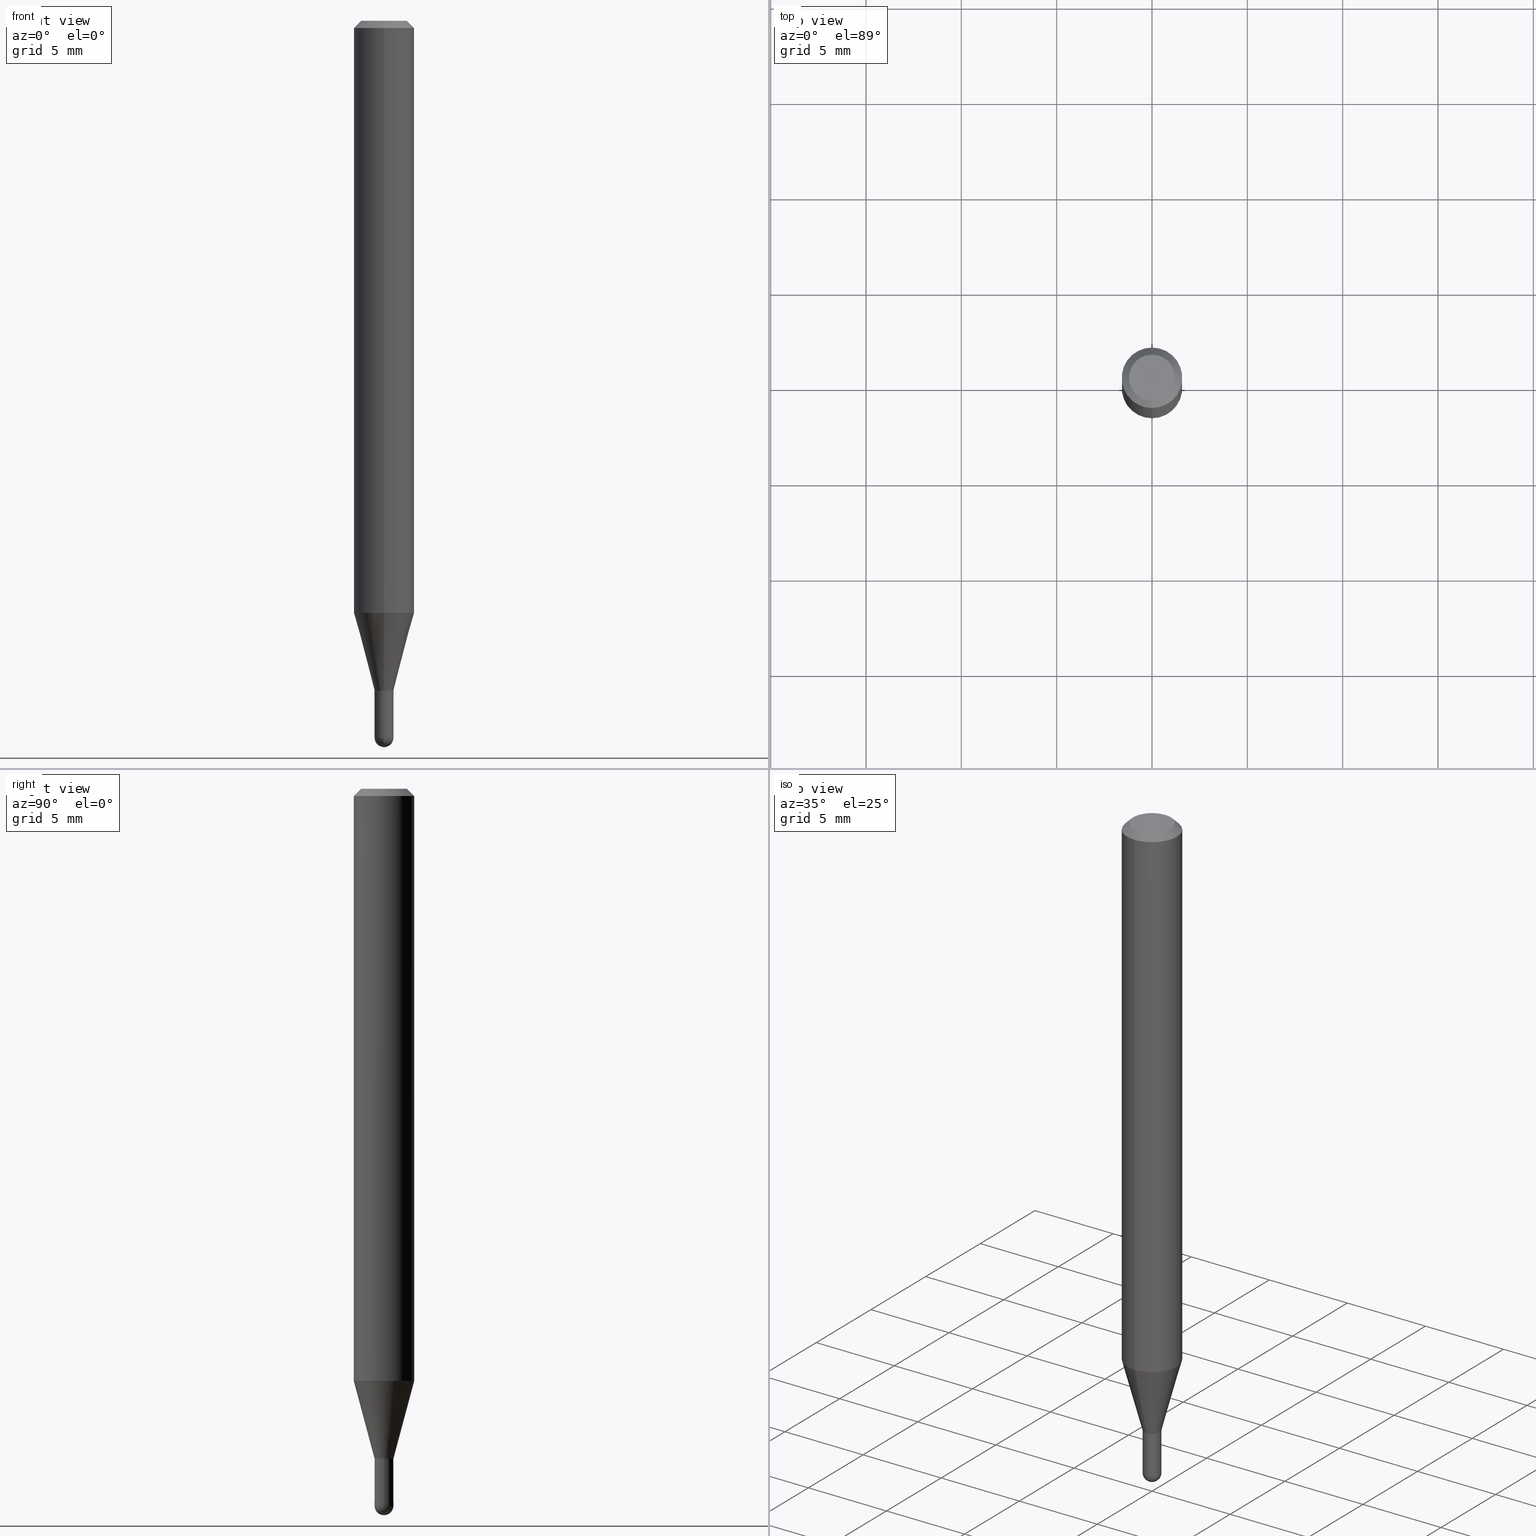
[diagram: canonical four-view strip — front | top / right | iso, engineering-drawing reading convention]
A machine part, canonical four-view strip (front | top / right | iso — engineering-drawing reading convention). The complete STEP part file that produces these views, byte-faithful:
ISO-10303-21;
HEADER;
FILE_DESCRIPTION (( 'STEP AP203' ),
    '1' );
FILE_NAME ('04417.STEP',
    '2024-03-08T19:20:02',
    ( '' ),
    ( '' ),
    'SwSTEP 2.0',
    'SolidWorks 2023',
    '' );
FILE_SCHEMA (( 'CONFIG_CONTROL_DESIGN' ));
ENDSEC;

DATA;
#1 = DIRECTION ( 'NONE',  ( -6.982962677686266711E-15, -1.000000000000000000, 3.491485706075402250E-15 ) ) ;
#2 = ORIENTED_EDGE ( 'NONE', *, *, #444, .T. ) ;
#3 = DIRECTION ( 'NONE',  ( 6.982962677686265922E-15, 1.000000000000000000, -3.483106191921935554E-15 ) ) ;
#4 = AXIS2_PLACEMENT_3D ( 'NONE', #385, #429, #267 ) ;
#5 = CC_DESIGN_APPROVAL ( #264, ( #504 ) ) ;
#6 = CARTESIAN_POINT ( 'NONE',  ( 3.316907271900976096E-16, 0.04749999999999999362, -1.985955843430136071E-16 ) ) ;
#7 = CARTESIAN_POINT ( 'NONE',  ( 3.380856408448557233E-29, -4.826978988649244890E-15, -1.382500000000000284 ) ) ;
#8 = CYLINDRICAL_SURFACE ( 'NONE', #435, 0.01949999999999964956 ) ;
#9 = DIRECTION ( 'NONE',  ( 1.000000000000000000, -6.982962677686260400E-15, 0.000000000000000000 ) ) ;
#10 = VECTOR ( 'NONE', #50, 39.37007874015748143 ) ;
#11 = CIRCLE ( 'NONE', #88, 0.06250000000000000000 ) ;
#12 = DIRECTION ( 'NONE',  ( -2.445465756563151118E-29, 3.491485706075402250E-15, 1.000000000000000000 ) ) ;
#13 = APPLICATION_CONTEXT ( 'configuration controlled 3d designs of mechanical parts and assemblies' ) ;
#14 = APPROVAL_STATUS ( 'not_yet_approved' ) ;
#15 = FACE_OUTER_BOUND ( 'NONE', #150, .T. ) ;
#16 = EDGE_CURVE ( 'NONE', #193, #282, #90, .T. ) ;
#17 = PERSON_AND_ORGANIZATION_ROLE ( 'design_owner' ) ;
#18 = CARTESIAN_POINT ( 'NONE',  ( -1.361677722148457732E-16, -0.01950000000000513822, -1.480500000000000149 ) ) ;
#19 = CALENDAR_DATE ( 2024, 8, 3 ) ;
#20 = DIRECTION ( 'NONE',  ( 1.000000000000000000, -6.982962677686258033E-15, 0.000000000000000000 ) ) ;
#21 = VECTOR ( 'NONE', #244, 39.37007874015748143 ) ;
#22 = COORDINATED_UNIVERSAL_TIME_OFFSET ( 5, 0, .BEHIND. ) ;
#23 = CARTESIAN_POINT ( 'NONE',  ( 3.665701847881856207E-29, -5.240804100152224451E-15, -1.500000000000000222 ) ) ;
#24 = CC_DESIGN_PERSON_AND_ORGANIZATION_ASSIGNMENT ( #409, #17, ( #359 ) ) ;
#25 = FACE_OUTER_BOUND ( 'NONE', #382, .T. ) ;
#26 = CARTESIAN_POINT ( 'NONE',  ( 3.382079141326838321E-29, -4.828724731502281500E-15, -1.383000000000000007 ) ) ;
#27 = CONICAL_SURFACE ( 'NONE', #237, 0.01949999999999964956, 0.2617993877991579010 ) ;
#28 = EDGE_CURVE ( 'NONE', #198, #507, #217, .T. ) ;
#29 = DIRECTION ( 'NONE',  ( -2.445468806185136877E-29, 3.491481338843145188E-15, 1.000000000000000000 ) ) ;
#30 = EDGE_LOOP ( 'NONE', ( #361, #451, #108, #77, #511 ) ) ;
#31 = EDGE_CURVE ( 'NONE', #474, #190, #328, .T. ) ;
#32 = CYLINDRICAL_SURFACE ( 'NONE', #139, 0.06250000000000000000 ) ;
#33 = ORIENTED_EDGE ( 'NONE', *, *, #209, .F. ) ;
#34 = DIRECTION ( 'NONE',  ( 4.937700262164548042E-15, 0.7071067811865451302, -0.7071067811865499042 ) ) ;
#35 = VERTEX_POINT ( 'NONE', #292 ) ;
#36 = CIRCLE ( 'NONE', #81, 0.01949999999999999997 ) ;
#37 = LINE ( 'NONE', #275, #65 ) ;
#38 = ADVANCED_FACE ( 'NONE', ( #481 ), #200, .F. ) ;
#39 = ORIENTED_EDGE ( 'NONE', *, *, #209, .T. ) ;
#40 = APPLICATION_CONTEXT ( 'configuration controlled 3d designs of mechanical parts and assemblies' ) ;
#41 = COORDINATED_UNIVERSAL_TIME_OFFSET ( 5, 0, .BEHIND. ) ;
#42 = VERTEX_POINT ( 'NONE', #445 ) ;
#43 = DIRECTION ( 'NONE',  ( -2.445465756563151118E-29, 3.491485706075402250E-15, 1.000000000000000000 ) ) ;
#44 = ADVANCED_FACE ( 'NONE', ( #369 ), #8, .F. ) ;
#45 = VECTOR ( 'NONE', #480, 39.37007874015748143 ) ;
#46 = CIRCLE ( 'NONE', #155, 0.01949999999999999303 ) ;
#47 = FACE_OUTER_BOUND ( 'NONE', #262, .T. ) ;
#48 = ADVANCED_FACE ( 'NONE', ( #83 ), #387, .T. ) ;
#49 = DIRECTION ( 'NONE',  ( -1.000000000000000000, 6.982962677686265922E-15, -4.876176775795935793E-29 ) ) ;
#50 = DIRECTION ( 'NONE',  ( -2.445465756563151398E-29, 3.491485706075402250E-15, 1.000000000000000000 ) ) ;
#51 = PERSON_AND_ORGANIZATION_ROLE ( 'creator' ) ;
#52 = VECTOR ( 'NONE', #222, 39.37007874015748143 ) ;
#53 = CC_DESIGN_SECURITY_CLASSIFICATION ( #132, ( #443 ) ) ;
#54 = DIRECTION ( 'NONE',  ( -2.445465756563151118E-29, 3.491485706075402250E-15, 1.000000000000000000 ) ) ;
#55 = ADVANCED_FACE ( 'NONE', ( #285 ), #247, .T. ) ;
#56 = DIRECTION ( 'NONE',  ( -2.445468806185136597E-29, 3.491481338843145583E-15, 1.000000000000000000 ) ) ;
#57 = DIRECTION ( 'NONE',  ( 1.000000000000000000, -6.982962677686265922E-15, 4.876176775795935793E-29 ) ) ;
#58 = PERSON ( 'UNSPECIFIED', 'UNSPECIFIED', 'UNSPECIFIED', ('UNSPECIFIED'), ('UNSPECIFIED'), ('UNSPECIFIED') ) ;
#59 = ORIENTED_EDGE ( 'NONE', *, *, #444, .F. ) ;
#60 = PERSON_AND_ORGANIZATION ( #58, #460 ) ;
#61 = DIRECTION ( 'NONE',  ( -6.982962677686265922E-15, -1.000000000000000000, 4.370956789862821150E-15 ) ) ;
#62 = PERSON_AND_ORGANIZATION ( #58, #460 ) ;
#63 = DIRECTION ( 'NONE',  ( -2.445465756563151118E-29, 3.491485706075402250E-15, 1.000000000000000000 ) ) ;
#64 = AXIS2_PLACEMENT_3D ( 'NONE', #449, #491, #339 ) ;
#65 = VECTOR ( 'NONE', #321, 39.37007874015748143 ) ;
#66 = VERTEX_POINT ( 'NONE', #133 ) ;
#67 = CARTESIAN_POINT ( 'NONE',  ( 4.440892098500925929E-16, 0.06249999999999995143, -0.01500000000000028394 ) ) ;
#68 = ORIENTED_EDGE ( 'NONE', *, *, #490, .F. ) ;
#69 = FACE_OUTER_BOUND ( 'NONE', #437, .T. ) ;
#70 = PLANE ( 'NONE',  #492 ) ;
#71 = ORIENTED_EDGE ( 'NONE', *, *, #448, .F. ) ;
#72 = AXIS2_PLACEMENT_3D ( 'NONE', #6, #324, #294 ) ;
#73 = APPROVAL ( #303, 'UNSPECIFIED' ) ;
#74 = LINE ( 'NONE', #506, #421 ) ;
#75 = EDGE_LOOP ( 'NONE', ( #430, #164, #311, #158 ) ) ;
#76 = CARTESIAN_POINT ( 'NONE',  ( 1.367794766338518492E-16, 0.01899999999999517006, -1.383000000000000007 ) ) ;
#77 = ORIENTED_EDGE ( 'NONE', *, *, #202, .T. ) ;
#78 = FACE_OUTER_BOUND ( 'NONE', #458, .T. ) ;
#79 = APPROVAL ( #14, 'UNSPECIFIED' ) ;
#80 = VERTEX_POINT ( 'NONE', #205 ) ;
#81 = AXIS2_PLACEMENT_3D ( 'NONE', #107, #424, #301 ) ;
#82 = EDGE_LOOP ( 'NONE', ( #71, #363 ) ) ;
#83 = FACE_OUTER_BOUND ( 'NONE', #75, .T. ) ;
#84 = EDGE_CURVE ( 'NONE', #282, #317, #249, .T. ) ;
#85 = DIRECTION ( 'NONE',  ( -6.982962677686265922E-15, -1.000000000000000000, 3.491485706075402250E-15 ) ) ;
#86 = VECTOR ( 'NONE', #203, 39.37007874015748854 ) ;
#87 = AXIS2_PLACEMENT_3D ( 'NONE', #7, #43, #165 ) ;
#88 = AXIS2_PLACEMENT_3D ( 'NONE', #230, #189, #277 ) ;
#89 = CARTESIAN_POINT ( 'NONE',  ( 3.382079141326838321E-29, -4.828724731502281500E-15, -1.383000000000000007 ) ) ;
#90 = LINE ( 'NONE', #326, #86 ) ;
#91 = PERSON_AND_ORGANIZATION ( #58, #460 ) ;
#92 = EDGE_CURVE ( 'NONE', #419, #302, #366, .T. ) ;
#93 = FACE_OUTER_BOUND ( 'NONE', #416, .T. ) ;
#94 = CALENDAR_DATE ( 2024, 8, 3 ) ;
#95 = AXIS2_PLACEMENT_3D ( 'NONE', #422, #497, #335 ) ;
#96 = CARTESIAN_POINT ( 'NONE',  ( -1.361677722148459211E-16, -0.01950000000000447556, -1.383000000000000007 ) ) ;
#97 = ORIENTED_EDGE ( 'NONE', *, *, #16, .F. ) ;
#98 =( LENGTH_UNIT ( ) NAMED_UNIT ( * ) SI_UNIT ( $, .METRE. ) );
#99 = DIRECTION ( 'NONE',  ( -2.445465756563151398E-29, 3.491485706075402250E-15, 1.000000000000000000 ) ) ;
#100 = ORIENTED_EDGE ( 'NONE', *, *, #439, .T. ) ;
#101 = COORDINATED_UNIVERSAL_TIME_OFFSET ( 5, 0, .BEHIND. ) ;
#102 = DIRECTION ( 'NONE',  ( -6.982962677686265922E-15, -1.000000000000000000, 3.483106191921935554E-15 ) ) ;
#103 = EDGE_CURVE ( 'NONE', #507, #317, #370, .T. ) ;
#104 = CIRCLE ( 'NONE', #371, 0.01949999999999999303 ) ;
#105 = LINE ( 'NONE', #182, #290 ) ;
#106 = ORIENTED_EDGE ( 'NONE', *, *, #28, .T. ) ;
#107 = CARTESIAN_POINT ( 'NONE',  ( 3.382083358954044842E-29, -4.828718691620071353E-15, -1.383000000000000229 ) ) ;
#108 = ORIENTED_EDGE ( 'NONE', *, *, #286, .T. ) ;
#109 = ADVANCED_FACE ( 'NONE', ( #47 ), #330, .F. ) ;
#110 = DIRECTION ( 'NONE',  ( 1.000000000000000000, -6.982962677686265922E-15, 4.876176775795935793E-29 ) ) ;
#111 = EDGE_CURVE ( 'NONE', #274, #66, #353, .T. ) ;
#112 = ORIENTED_EDGE ( 'NONE', *, *, #241, .T. ) ;
#113 = CARTESIAN_POINT ( 'NONE',  ( -4.364351673553912750E-16, -0.06250000000000005551, -0.01499999999999984852 ) ) ;
#114 = ORIENTED_EDGE ( 'NONE', *, *, #84, .F. ) ;
#115 = APPROVAL_PERSON_ORGANIZATION ( #91, #264, #257 ) ;
#116 = DIRECTION ( 'NONE',  ( -6.982962677686265922E-15, -1.000000000000000000, 0.000000000000000000 ) ) ;
#117 = ORIENTED_EDGE ( 'NONE', *, *, #16, .T. ) ;
#118 = ADVANCED_FACE ( 'NONE', ( #93 ), #251, .F. ) ;
#119 = LINE ( 'NONE', #310, #388 ) ;
#120 = EDGE_LOOP ( 'NONE', ( #297, #152, #498, #470 ) ) ;
#121 = DIRECTION ( 'NONE',  ( -6.982962677686265922E-15, -1.000000000000000000, 0.000000000000000000 ) ) ;
#122 = VERTEX_POINT ( 'NONE', #401 ) ;
#123 = CONICAL_SURFACE ( 'NONE', #365, 0.01899999999999999953, 0.7853981633974718157 ) ;
#124 = CIRCLE ( 'NONE', #131, 0.01899999999999999953 ) ;
#125 = DIRECTION ( 'NONE',  ( -2.445468806185136597E-29, 3.491481338843145583E-15, 1.000000000000000000 ) ) ;
#126 = DIRECTION ( 'NONE',  ( -6.982962677686265133E-15, -1.000000000000000000, 3.491485706075401461E-15 ) ) ;
#127 = EDGE_CURVE ( 'NONE', #505, #190, #130, .T. ) ;
#128 = CARTESIAN_POINT ( 'NONE',  ( 0.000000000000000000, 0.000000000000000000, 0.000000000000000000 ) ) ;
#129 = CARTESIAN_POINT ( 'NONE',  ( -4.287811248607203282E-16, -0.06250000000000005551, -0.01499999999999984852 ) ) ;
#130 = CIRCLE ( 'NONE', #87, 0.01949999999999964956 ) ;
#131 = AXIS2_PLACEMENT_3D ( 'NONE', #226, #351, #121 ) ;
#132 = SECURITY_CLASSIFICATION ( '', '', #283 ) ;
#133 = CARTESIAN_POINT ( 'NONE',  ( 1.385558334732555032E-16, 0.01949999999999479927, -1.480500000000000149 ) ) ;
#134 = ADVANCED_FACE ( 'NONE', ( #287 ), #296, .T. ) ;
#135 = CARTESIAN_POINT ( 'NONE',  ( 3.618848993293195667E-29, -5.171526183415615213E-15, -1.480500000000000149 ) ) ;
#136 = CARTESIAN_POINT ( 'NONE',  ( -1.361677722148463895E-16, -0.01950000000000454148, -1.382500000000000284 ) ) ;
#137 = DIRECTION ( 'NONE',  ( -2.445465756563151118E-29, 3.491485706075402250E-15, 1.000000000000000000 ) ) ;
#138 = CLOSED_SHELL ( 'NONE', ( #118, #232, #211, #320, #425, #273, #55, #48, #109, #402, #246, #44 ) ) ;
#139 = AXIS2_PLACEMENT_3D ( 'NONE', #471, #224, #349 ) ;
#140 = DIRECTION ( 'NONE',  ( -2.445465756563151118E-29, 3.491485706075402250E-15, 1.000000000000000000 ) ) ;
#141 = DIRECTION ( 'NONE',  ( 1.000000000000000000, 0.000000000000000000, 0.000000000000000000 ) ) ;
#142 = DIRECTION ( 'NONE',  ( -2.445468806185136597E-29, 3.491481338843145583E-15, 1.000000000000000000 ) ) ;
#143 = DESIGN_CONTEXT ( 'detailed design', #13, 'design' ) ;
#144 = DIRECTION ( 'NONE',  ( -6.982962677686265133E-15, -1.000000000000000000, 0.000000000000000000 ) ) ;
#145 = ORIENTED_EDGE ( 'NONE', *, *, #338, .T. ) ;
#146 = CIRCLE ( 'NONE', #378, 0.01899999999999999953 ) ;
#147 = DIRECTION ( 'NONE',  ( -2.445465756563151118E-29, 3.491485706075402250E-15, 1.000000000000000000 ) ) ;
#148 = UNCERTAINTY_MEASURE_WITH_UNIT (LENGTH_MEASURE( 1.000000000000000082E-05 ), #293, 'distance_accuracy_value', 'NONE');
#149 = CYLINDRICAL_SURFACE ( 'NONE', #467, 0.01949999999999999997 ) ;
#150 = EDGE_LOOP ( 'NONE', ( #240, #214, #278, #427, #259 ) ) ;
#151 = DIRECTION ( 'NONE',  ( -6.982962677686265133E-15, -1.000000000000000000, 0.000000000000000000 ) ) ;
#152 = ORIENTED_EDGE ( 'NONE', *, *, #31, .T. ) ;
#153 = CARTESIAN_POINT ( 'NONE',  ( 1.601780721259521608E-45, -2.286924066524072181E-31, -6.550002660886400500E-17 ) ) ;
#154 = ORIENTED_EDGE ( 'NONE', *, *, #229, .T. ) ;
#155 = AXIS2_PLACEMENT_3D ( 'NONE', #295, #125, #252 ) ;
#156 = DIRECTION ( 'NONE',  ( -2.445468806185136597E-29, 3.491481338843145583E-15, 1.000000000000000000 ) ) ;
#157 = EDGE_CURVE ( 'NONE', #474, #42, #146, .T. ) ;
#158 = ORIENTED_EDGE ( 'NONE', *, *, #254, .T. ) ;
#159 = DIRECTION ( 'NONE',  ( -2.445465756563151118E-29, 3.491485706075402250E-15, 1.000000000000000000 ) ) ;
#160 = ORIENTED_EDGE ( 'NONE', *, *, #478, .F. ) ;
#161 = CARTESIAN_POINT ( 'NONE',  ( 1.350031197944528297E-16, 0.01899999999999517006, -1.383000000000000007 ) ) ;
#162 = CIRCLE ( 'NONE', #450, 0.01949999999999999303 ) ;
#163 = ADVANCED_FACE ( 'NONE', ( #15 ), #333, .T. ) ;
#164 = ORIENTED_EDGE ( 'NONE', *, *, #28, .F. ) ;
#165 = DIRECTION ( 'NONE',  ( -6.982962677686265133E-15, -1.000000000000000000, 0.000000000000000000 ) ) ;
#166 = ORIENTED_EDGE ( 'NONE', *, *, #127, .T. ) ;
#167 = CC_DESIGN_PERSON_AND_ORGANIZATION_ASSIGNMENT ( #334, #51, ( #504 ) ) ;
#168 = AXIS2_PLACEMENT_3D ( 'NONE', #462, #147, #452 ) ;
#169 = DIRECTION ( 'NONE',  ( -6.982962677686265133E-15, -1.000000000000000000, 3.491485706075401461E-15 ) ) ;
#170 = COORDINATED_UNIVERSAL_TIME_OFFSET ( 5, 0, .BEHIND. ) ;
#171 = FACE_OUTER_BOUND ( 'NONE', #502, .T. ) ;
#172 = APPROVAL_DATE_TIME ( #212, #264 ) ;
#173 = CARTESIAN_POINT ( 'NONE',  ( 3.840629472727447874E-16, 0.04749999999999999362, -2.313455976474456035E-16 ) ) ;
#174 = EDGE_LOOP ( 'NONE', ( #305, #377, #39, #166 ) ) ;
#175 = PERSON_AND_ORGANIZATION_ROLE ( 'creator' ) ;
#176 = EDGE_CURVE ( 'NONE', #282, #302, #436, .T. ) ;
#177 = AXIS2_PLACEMENT_3D ( 'NONE', #375, #265, #266 ) ;
#178 = CC_DESIGN_APPROVAL ( #73, ( #132 ) ) ;
#179 = CARTESIAN_POINT ( 'NONE',  ( 2.989635235905315771E-29, -4.268417443396418257E-15, -1.222521815274542289 ) ) ;
#180 = CALENDAR_DATE ( 2024, 8, 3 ) ;
#181 = CARTESIAN_POINT ( 'NONE',  ( -4.364351673553618406E-16, -0.06250000000000428824, -1.222521815274542067 ) ) ;
#182 = CARTESIAN_POINT ( 'NONE',  ( -1.361677722148797189E-16, -0.01949999999999964956, 6.808397126846910861E-17 ) ) ;
#183 = ORIENTED_EDGE ( 'NONE', *, *, #92, .T. ) ;
#184 = CC_DESIGN_DATE_AND_TIME_ASSIGNMENT ( #477, #489, ( #504 ) ) ;
#185 = DIRECTION ( 'NONE',  ( -6.982962677686265922E-15, -1.000000000000000000, 3.491485706075402250E-15 ) ) ;
#186 = VERTEX_POINT ( 'NONE', #67 ) ;
#187 = MANIFOLD_SOLID_BREP ( 'Body-Move/Copy2[1]', #442 ) ;
#188 = ORIENTED_EDGE ( 'NONE', *, *, #176, .T. ) ;
#189 = DIRECTION ( 'NONE',  ( -2.445465756563151118E-29, 3.491485706075402250E-15, 1.000000000000000000 ) ) ;
#190 = VERTEX_POINT ( 'NONE', #220 ) ;
#191 = CARTESIAN_POINT ( 'NONE',  ( 3.382079141326838321E-29, -4.828724731502281500E-15, -1.383000000000000007 ) ) ;
#192 = CIRCLE ( 'NONE', #482, 0.06250000000000000000 ) ;
#193 = VERTEX_POINT ( 'NONE', #96 ) ;
#194 = LOCAL_TIME ( 14, 20, 2.000000000000000000, #207 ) ;
#195 = CARTESIAN_POINT ( 'NONE',  ( 3.620516567557095727E-29, -5.169138122157277171E-15, -1.480500000000000149 ) ) ;
#196 = ORIENTED_EDGE ( 'NONE', *, *, #176, .F. ) ;
#197 = DATE_AND_TIME ( #19, #354 ) ;
#198 = VERTEX_POINT ( 'NONE', #173 ) ;
#199 = EDGE_CURVE ( 'NONE', #419, #193, #403, .T. ) ;
#200 = PLANE ( 'NONE',  #235 ) ;
#201 = CARTESIAN_POINT ( 'NONE',  ( 1.361677722149159819E-16, 0.01949999999999517050, -1.383000000000000229 ) ) ;
#202 = EDGE_CURVE ( 'NONE', #35, #344, #456, .T. ) ;
#203 = DIRECTION ( 'NONE',  ( -1.807323732225381810E-15, -0.2588190451025255689, 0.9659258262890669799 ) ) ;
#204 = MECHANICAL_CONTEXT ( 'NONE', #40, 'mechanical' ) ;
#205 = CARTESIAN_POINT ( 'NONE',  ( -0.01949999999999999997, -4.860372573415455392E-15, -1.383000000000000229 ) ) ;
#206 = AXIS2_PLACEMENT_3D ( 'NONE', #488, #253, #144 ) ;
#207 = COORDINATED_UNIVERSAL_TIME_OFFSET ( 5, 0, .BEHIND. ) ;
#208 = DIRECTION ( 'NONE',  ( -2.445465756563151118E-29, 3.491485706075402250E-15, 1.000000000000000000 ) ) ;
#209 = EDGE_CURVE ( 'NONE', #193, #505, #105, .T. ) ;
#210 = DIRECTION ( 'NONE',  ( -2.445465756563151118E-29, 3.491485706075402250E-15, 1.000000000000000000 ) ) ;
#211 = ADVANCED_FACE ( 'NONE', ( #171 ), #308, .T. ) ;
#212 = DATE_AND_TIME ( #94, #356 ) ;
#213 = DIRECTION ( 'NONE',  ( -6.982962677686265922E-15, -1.000000000000000000, 0.000000000000000000 ) ) ;
#214 = ORIENTED_EDGE ( 'NONE', *, *, #289, .T. ) ;
#215 = AXIS2_PLACEMENT_3D ( 'NONE', #438, #12, #486 ) ;
#216 = APPROVAL_ROLE ( '' ) ;
#217 = CIRCLE ( 'NONE', #215, 0.04749999999999999362 ) ;
#218 = AXIS2_PLACEMENT_3D ( 'NONE', #441, #484, #85 ) ;
#219 = APPROVAL_PERSON_ORGANIZATION ( #299, #79, #239 ) ;
#220 = CARTESIAN_POINT ( 'NONE',  ( 1.385558334732503756E-16, 0.01949999999999475764, -1.382500000000000284 ) ) ;
#221 = DIMENSIONAL_EXPONENTS ( 1.000000000000000000, 0.000000000000000000, 0.000000000000000000, 0.000000000000000000, 0.000000000000000000, 0.000000000000000000, 0.000000000000000000 ) ;
#222 = DIRECTION ( 'NONE',  ( -2.445468806185136877E-29, 3.491481338843145188E-15, 1.000000000000000000 ) ) ;
#223 = EDGE_LOOP ( 'NONE', ( #392, #112, #160, #68 ) ) ;
#224 = DIRECTION ( 'NONE',  ( -2.445465756563151118E-29, 3.491485706075402250E-15, 1.000000000000000000 ) ) ;
#225 = CIRCLE ( 'NONE', #4, 0.01949999999999964956 ) ;
#226 = CARTESIAN_POINT ( 'NONE',  ( 3.382079141326838321E-29, -4.828724731502281500E-15, -1.383000000000000007 ) ) ;
#227 = CIRCLE ( 'NONE', #509, 0.01949999999999999303 ) ;
#228 = VERTEX_POINT ( 'NONE', #18 ) ;
#229 = EDGE_CURVE ( 'NONE', #193, #419, #459, .T. ) ;
#230 = CARTESIAN_POINT ( 'NONE',  ( 2.989635235905315771E-29, -4.268417443396418257E-15, -1.222521815274542289 ) ) ;
#231 = ORIENTED_EDGE ( 'NONE', *, *, #248, .F. ) ;
#232 = ADVANCED_FACE ( 'NONE', ( #304 ), #288, .T. ) ;
#233 = LINE ( 'NONE', #501, #380 ) ;
#234 = EDGE_LOOP ( 'NONE', ( #434, #357 ) ) ;
#235 = AXIS2_PLACEMENT_3D ( 'NONE', #201, #411, #49 ) ;
#236 = FACE_OUTER_BOUND ( 'NONE', #268, .T. ) ;
#237 = AXIS2_PLACEMENT_3D ( 'NONE', #261, #63, #381 ) ;
#238 = EDGE_LOOP ( 'NONE', ( #350, #347, #117, #59 ) ) ;
#239 = APPROVAL_ROLE ( '' ) ;
#240 = ORIENTED_EDGE ( 'NONE', *, *, #490, .T. ) ;
#241 = EDGE_CURVE ( 'NONE', #274, #228, #281, .T. ) ;
#242 = DIRECTION ( 'NONE',  ( 0.000000000000000000, 0.000000000000000000, 1.000000000000000000 ) ) ;
#243 = DIRECTION ( 'NONE',  ( 2.445465756563151118E-29, -3.491485706075402250E-15, -1.000000000000000000 ) ) ;
#244 = DIRECTION ( 'NONE',  ( -4.851104656540964275E-15, -0.7071067811865500152, -0.7071067811865450192 ) ) ;
#245 =( GEOMETRIC_REPRESENTATION_CONTEXT ( 3 ) GLOBAL_UNCERTAINTY_ASSIGNED_CONTEXT ( ( #148 ) ) GLOBAL_UNIT_ASSIGNED_CONTEXT ( ( #293, #400, #329 ) ) REPRESENTATION_CONTEXT ( 'NONE', 'WORKASPACE' ) );
#246 = ADVANCED_FACE ( 'NONE', ( #25 ), #123, .T. ) ;
#247 = CYLINDRICAL_SURFACE ( 'NONE', #218, 0.06250000000000000000 ) ;
#248 = EDGE_CURVE ( 'NONE', #317, #186, #192, .T. ) ;
#249 = LINE ( 'NONE', #479, #10 ) ;
#250 = CARTESIAN_POINT ( 'NONE',  ( -3.773273898774340269E-16, -0.04749999999999999362, 1.003455444297175812E-16 ) ) ;
#251 = CYLINDRICAL_SURFACE ( 'NONE', #476, 0.01949999999999964956 ) ;
#252 = DIRECTION ( 'NONE',  ( 1.000000000000000000, -6.982962677686260400E-15, 0.000000000000000000 ) ) ;
#253 = DIRECTION ( 'NONE',  ( -2.445465756563151118E-29, 3.491485706075402250E-15, 1.000000000000000000 ) ) ;
#254 = EDGE_CURVE ( 'NONE', #186, #317, #345, .T. ) ;
#255 = ORIENTED_EDGE ( 'NONE', *, *, #358, .F. ) ;
#256 = EDGE_CURVE ( 'NONE', #80, #344, #36, .T. ) ;
#257 = APPROVAL_ROLE ( '' ) ;
#258 = CARTESIAN_POINT ( 'NONE',  ( 3.668198634844742967E-31, -5.237228559113126399E-17, -0.01500000000000006710 ) ) ;
#259 = ORIENTED_EDGE ( 'NONE', *, *, #348, .T. ) ;
#260 = DATE_AND_TIME ( #417, #483 ) ;
#261 = CARTESIAN_POINT ( 'NONE',  ( 3.382079141326838321E-29, -4.828724731502281500E-15, -1.383000000000000007 ) ) ;
#262 = EDGE_LOOP ( 'NONE', ( #106, #319 ) ) ;
#263 = AXIS2_PLACEMENT_3D ( 'NONE', #415, #137, #500 ) ;
#264 = APPROVAL ( #323, 'UNSPECIFIED' ) ;
#265 = DIRECTION ( 'NONE',  ( 2.445465756563151118E-29, -3.491485706075402250E-15, -1.000000000000000000 ) ) ;
#266 = DIRECTION ( 'NONE',  ( 6.982962677686265922E-15, 1.000000000000000000, -3.483106191921935554E-15 ) ) ;
#267 = DIRECTION ( 'NONE',  ( -6.982962677686265133E-15, -1.000000000000000000, 0.000000000000000000 ) ) ;
#268 = EDGE_LOOP ( 'NONE', ( #276, #472, #390, #399 ) ) ;
#269 = EDGE_CURVE ( 'NONE', #344, #80, #428, .T. ) ;
#270 = AXIS2_PLACEMENT_3D ( 'NONE', #383, #343, #306 ) ;
#271 = DIRECTION ( 'NONE',  ( -2.445468806185136597E-29, 3.491481338843145583E-15, 1.000000000000000000 ) ) ;
#272 = CIRCLE ( 'NONE', #325, 0.04749999999999999362 ) ;
#273 = ADVANCED_FACE ( 'NONE', ( #455 ), #27, .T. ) ;
#274 = VERTEX_POINT ( 'NONE', #23 ) ;
#275 = CARTESIAN_POINT ( 'NONE',  ( -1.326762908760052313E-16, -0.01900000000000482553, -1.383000000000000007 ) ) ;
#276 = ORIENTED_EDGE ( 'NONE', *, *, #241, .F. ) ;
#277 = DIRECTION ( 'NONE',  ( -6.982962677686265922E-15, -1.000000000000000000, 4.370956789862821150E-15 ) ) ;
#278 = ORIENTED_EDGE ( 'NONE', *, *, #269, .F. ) ;
#279 = FACE_OUTER_BOUND ( 'NONE', #30, .T. ) ;
#280 = CC_DESIGN_DATE_AND_TIME_ASSIGNMENT ( #260, #379, ( #132 ) ) ;
#281 = CIRCLE ( 'NONE', #64, 0.01949999999999994446 ) ;
#282 = VERTEX_POINT ( 'NONE', #181 ) ;
#283 = SECURITY_CLASSIFICATION_LEVEL ( 'unclassified' ) ;
#284 = CARTESIAN_POINT ( 'NONE',  ( 0.000000000000000000, 0.000000000000000000, 0.000000000000000000 ) ) ;
#285 = FACE_OUTER_BOUND ( 'NONE', #384, .T. ) ;
#286 = EDGE_CURVE ( 'NONE', #228, #35, #104, .T. ) ;
#287 = FACE_OUTER_BOUND ( 'NONE', #223, .T. ) ;
#288 = CONICAL_SURFACE ( 'NONE', #95, 0.01899999999999999953, 0.7853981633974718157 ) ;
#289 = EDGE_CURVE ( 'NONE', #122, #80, #318, .T. ) ;
#290 = VECTOR ( 'NONE', #99, 39.37007874015748143 ) ;
#291 = CC_DESIGN_APPROVAL ( #79, ( #443 ) ) ;
#292 = CARTESIAN_POINT ( 'NONE',  ( 0.01949999999999999303, -5.135096179103555879E-15, -1.480500000000000149 ) ) ;
#293 =( CONVERSION_BASED_UNIT ( 'INCH', #447 ) LENGTH_UNIT ( ) NAMED_UNIT ( #221 ) );
#294 = DIRECTION ( 'NONE',  ( 6.982962677686265922E-15, 1.000000000000000000, -3.491485706075402250E-15 ) ) ;
#295 = CARTESIAN_POINT ( 'NONE',  ( 3.620516567557095727E-29, -5.169138122157277171E-15, -1.480500000000000149 ) ) ;
#296 = SPHERICAL_SURFACE ( 'NONE', #270, 0.01949999999999994446 ) ;
#297 = ORIENTED_EDGE ( 'NONE', *, *, #448, .T. ) ;
#298 = AXIS2_PLACEMENT_3D ( 'NONE', #179, #210, #61 ) ;
#299 = PERSON_AND_ORGANIZATION ( #58, #460 ) ;
#300 = AXIS2_PLACEMENT_3D ( 'NONE', #191, #159, #151 ) ;
#301 = DIRECTION ( 'NONE',  ( 1.000000000000000000, -6.982962677686258033E-15, 0.000000000000000000 ) ) ;
#302 = VERTEX_POINT ( 'NONE', #465 ) ;
#303 = APPROVAL_STATUS ( 'not_yet_approved' ) ;
#304 = FACE_OUTER_BOUND ( 'NONE', #120, .T. ) ;
#305 = ORIENTED_EDGE ( 'NONE', *, *, #338, .F. ) ;
#306 = DIRECTION ( 'NONE',  ( -6.982962677686265922E-15, -1.000000000000000000, 0.000000000000000000 ) ) ;
#307 = ORIENTED_EDGE ( 'NONE', *, *, #84, .T. ) ;
#308 = CONICAL_SURFACE ( 'NONE', #177, 0.06250000000000000000, 0.7853981633974483900 ) ;
#309 = DIRECTION ( 'NONE',  ( -2.445465756563151118E-29, 3.491485706075402250E-15, 1.000000000000000000 ) ) ;
#310 = CARTESIAN_POINT ( 'NONE',  ( 1.385558334732169969E-16, 0.01949999999999964956, -6.808397126846910861E-17 ) ) ;
#311 = ORIENTED_EDGE ( 'NONE', *, *, #475, .T. ) ;
#312 = PRODUCT_DEFINITION_SHAPE ( 'NONE', 'NONE',  #504 ) ;
#313 = CARTESIAN_POINT ( 'NONE',  ( -0.01949999999999999997, 1.385558334732195360E-16, -9.591923425997065392E-31 ) ) ;
#314 = ORIENTED_EDGE ( 'NONE', *, *, #439, .F. ) ;
#315 = CARTESIAN_POINT ( 'NONE',  ( 3.618848993293195667E-29, -5.171526183415615213E-15, -1.480500000000000149 ) ) ;
#316 = CONICAL_SURFACE ( 'NONE', #300, 0.01949999999999964956, 0.2617993877991579010 ) ;
#317 = VERTEX_POINT ( 'NONE', #113 ) ;
#318 = LINE ( 'NONE', #313, #412 ) ;
#319 = ORIENTED_EDGE ( 'NONE', *, *, #461, .T. ) ;
#320 = ADVANCED_FACE ( 'NONE', ( #69 ), #32, .T. ) ;
#321 = DIRECTION ( 'NONE',  ( -4.937700262164664794E-15, -0.7071067811865617836, 0.7071067811865333619 ) ) ;
#322 = ORIENTED_EDGE ( 'NONE', *, *, #248, .T. ) ;
#323 = APPROVAL_STATUS ( 'not_yet_approved' ) ;
#324 = DIRECTION ( 'NONE',  ( 2.445465756563150838E-29, -3.491485706075402250E-15, -1.000000000000000000 ) ) ;
#325 = AXIS2_PLACEMENT_3D ( 'NONE', #153, #393, #1 ) ;
#326 = CARTESIAN_POINT ( 'NONE',  ( -1.361677722148459211E-16, -0.01950000000000447556, -1.383000000000000007 ) ) ;
#327 = DIRECTION ( 'NONE',  ( 5.024295867788180719E-15, 0.7071067811865666686, 0.7071067811865284769 ) ) ;
#328 = LINE ( 'NONE', #161, #457 ) ;
#329 =( NAMED_UNIT ( * ) SI_UNIT ( $, .STERADIAN. ) SOLID_ANGLE_UNIT ( ) );
#330 = PLANE ( 'NONE',  #72 ) ;
#331 = APPROVAL_DATE_TIME ( #197, #79 ) ;
#332 = PRODUCT_RELATED_PRODUCT_CATEGORY ( 'detail', '', ( #359 ) ) ;
#333 = CYLINDRICAL_SURFACE ( 'NONE', #508, 0.01949999999999999997 ) ;
#334 = PERSON_AND_ORGANIZATION ( #58, #460 ) ;
#335 = DIRECTION ( 'NONE',  ( -6.982962677686265922E-15, -1.000000000000000000, 0.000000000000000000 ) ) ;
#336 = PERSON_AND_ORGANIZATION ( #58, #460 ) ;
#337 = AXIS2_PLACEMENT_3D ( 'NONE', #414, #242, #141 ) ;
#338 = EDGE_CURVE ( 'NONE', #419, #190, #119, .T. ) ;
#339 = DIRECTION ( 'NONE',  ( -6.982962677686265133E-15, -1.000000000000000000, 0.000000000000000000 ) ) ;
#340 = DATE_AND_TIME ( #180, #405 ) ;
#341 = DIRECTION ( 'NONE',  ( -2.445468806185136597E-29, 3.491481338843145583E-15, 1.000000000000000000 ) ) ;
#342 = ORIENTED_EDGE ( 'NONE', *, *, #31, .F. ) ;
#343 = DIRECTION ( 'NONE',  ( 1.000000000000000000, -6.982962677686265922E-15, 4.883557194083112340E-29 ) ) ;
#344 = VERTEX_POINT ( 'NONE', #503 ) ;
#345 = CIRCLE ( 'NONE', #263, 0.06250000000000000000 ) ;
#346 = CARTESIAN_POINT ( 'NONE',  ( 3.620516567557095727E-29, -5.169138122157277171E-15, -1.480500000000000149 ) ) ;
#347 = ORIENTED_EDGE ( 'NONE', *, *, #199, .T. ) ;
#348 = EDGE_CURVE ( 'NONE', #35, #66, #162, .T. ) ;
#349 = DIRECTION ( 'NONE',  ( -6.982962677686265922E-15, -1.000000000000000000, 3.491485706075402250E-15 ) ) ;
#350 = ORIENTED_EDGE ( 'NONE', *, *, #92, .F. ) ;
#351 = DIRECTION ( 'NONE',  ( -2.445465756563151118E-29, 3.491485706075402250E-15, 1.000000000000000000 ) ) ;
#352 = ORIENTED_EDGE ( 'NONE', *, *, #358, .T. ) ;
#353 = CIRCLE ( 'NONE', #420, 0.01949999999999994446 ) ;
#354 = LOCAL_TIME ( 14, 20, 2.000000000000000000, #170 ) ;
#355 = DIRECTION ( 'NONE',  ( 1.000000000000000000, -6.982962677686260400E-15, 0.000000000000000000 ) ) ;
#356 = LOCAL_TIME ( 14, 20, 2.000000000000000000, #41 ) ;
#357 = ORIENTED_EDGE ( 'NONE', *, *, #256, .T. ) ;
#358 = EDGE_CURVE ( 'NONE', #190, #505, #225, .T. ) ;
#359 = PRODUCT ( '04417', '04417', '', ( #204 ) ) ;
#360 = DIRECTION ( 'NONE',  ( -2.445465756563151398E-29, 3.491485706075402250E-15, 1.000000000000000000 ) ) ;
#361 = ORIENTED_EDGE ( 'NONE', *, *, #289, .F. ) ;
#362 = PERSON_AND_ORGANIZATION_ROLE ( 'classification_officer' ) ;
#363 = ORIENTED_EDGE ( 'NONE', *, *, #157, .F. ) ;
#364 = ADVANCED_FACE ( 'NONE', ( #279 ), #149, .T. ) ;
#365 = AXIS2_PLACEMENT_3D ( 'NONE', #495, #140, #213 ) ;
#366 = LINE ( 'NONE', #408, #45 ) ;
#367 = APPROVAL_PERSON_ORGANIZATION ( #62, #73, #216 ) ;
#368 = DIRECTION ( 'NONE',  ( 7.105427357600999492E-15, 1.000000000000000000, 0.000000000000000000 ) ) ;
#369 = FACE_OUTER_BOUND ( 'NONE', #174, .T. ) ;
#370 = LINE ( 'NONE', #129, #21 ) ;
#371 = AXIS2_PLACEMENT_3D ( 'NONE', #195, #156, #355 ) ;
#372 = CC_DESIGN_PERSON_AND_ORGANIZATION_ASSIGNMENT ( #398, #362, ( #132 ) ) ;
#373 = CALENDAR_DATE ( 2024, 8, 3 ) ;
#374 = CARTESIAN_POINT ( 'NONE',  ( 0.01949999999999999997, -1.361677722148821841E-16, 9.508544712802074656E-31 ) ) ;
#375 = CARTESIAN_POINT ( 'NONE',  ( 3.668198634844742967E-31, -5.237228559113126399E-17, -0.01500000000000006710 ) ) ;
#376 = CARTESIAN_POINT ( 'NONE',  ( 3.382083358954044842E-29, -4.828718691620071353E-15, -1.383000000000000229 ) ) ;
#377 = ORIENTED_EDGE ( 'NONE', *, *, #229, .F. ) ;
#378 = AXIS2_PLACEMENT_3D ( 'NONE', #89, #208, #413 ) ;
#379 = DATE_TIME_ROLE ( 'classification_date' ) ;
#380 = VECTOR ( 'NONE', #34, 39.37007874015748143 ) ;
#381 = DIRECTION ( 'NONE',  ( -6.982962677686265133E-15, -1.000000000000000000, 0.000000000000000000 ) ) ;
#382 = EDGE_LOOP ( 'NONE', ( #342, #466, #464, #255 ) ) ;
#383 = CARTESIAN_POINT ( 'NONE',  ( 3.618848993293195667E-29, -5.171526183415615213E-15, -1.480500000000000149 ) ) ;
#384 = EDGE_LOOP ( 'NONE', ( #314, #2, #307, #432 ) ) ;
#385 = CARTESIAN_POINT ( 'NONE',  ( 3.380856408448557233E-29, -4.826978988649244890E-15, -1.382500000000000284 ) ) ;
#386 = ORIENTED_EDGE ( 'NONE', *, *, #199, .F. ) ;
#387 = CONICAL_SURFACE ( 'NONE', #410, 0.06250000000000000000, 0.7853981633974483900 ) ;
#388 = VECTOR ( 'NONE', #389, 39.37007874015748143 ) ;
#389 = DIRECTION ( 'NONE',  ( -2.445465756563151398E-29, 3.491485706075402250E-15, 1.000000000000000000 ) ) ;
#390 = ORIENTED_EDGE ( 'NONE', *, *, #348, .F. ) ;
#391 = CARTESIAN_POINT ( 'NONE',  ( 0.000000000000000000, 0.000000000000000000, 0.000000000000000000 ) ) ;
#392 = ORIENTED_EDGE ( 'NONE', *, *, #111, .F. ) ;
#393 = DIRECTION ( 'NONE',  ( -2.445465756563151118E-29, 3.491485706075402250E-15, 1.000000000000000000 ) ) ;
#394 = ORIENTED_EDGE ( 'NONE', *, *, #475, .F. ) ;
#395 = AXIS2_PLACEMENT_3D ( 'NONE', #376, #142, #20 ) ;
#396 = SPHERICAL_SURFACE ( 'NONE', #493, 0.01949999999999994446 ) ;
#397 = ORIENTED_EDGE ( 'NONE', *, *, #103, .T. ) ;
#398 = PERSON_AND_ORGANIZATION ( #58, #460 ) ;
#399 = ORIENTED_EDGE ( 'NONE', *, *, #286, .F. ) ;
#400 =( NAMED_UNIT ( * ) PLANE_ANGLE_UNIT ( ) SI_UNIT ( $, .RADIAN. ) );
#401 = CARTESIAN_POINT ( 'NONE',  ( -0.01949999999999999303, -4.860372573415455392E-15, -1.480500000000000149 ) ) ;
#402 = ADVANCED_FACE ( 'NONE', ( #433 ), #70, .F. ) ;
#403 = CIRCLE ( 'NONE', #168, 0.01949999999999964956 ) ;
#404 = DIRECTION ( 'NONE',  ( -2.445465756563151118E-29, 3.491485706075402250E-15, 1.000000000000000000 ) ) ;
#405 = LOCAL_TIME ( 14, 20, 2.000000000000000000, #101 ) ;
#406 = CARTESIAN_POINT ( 'NONE',  ( 3.668198634844742967E-31, -5.237228559113126399E-17, -0.01500000000000006710 ) ) ;
#407 = CC_DESIGN_PERSON_AND_ORGANIZATION_ASSIGNMENT ( #336, #494, ( #443 ) ) ;
#408 = CARTESIAN_POINT ( 'NONE',  ( 1.385558334732508193E-16, 0.01949999999999482009, -1.383000000000000007 ) ) ;
#409 = PERSON_AND_ORGANIZATION ( #58, #460 ) ;
#410 = AXIS2_PLACEMENT_3D ( 'NONE', #406, #243, #3 ) ;
#411 = DIRECTION ( 'NONE',  ( 2.438088387897960049E-29, -3.491481338843145188E-15, -1.000000000000000000 ) ) ;
#412 = VECTOR ( 'NONE', #29, 39.37007874015748143 ) ;
#413 = DIRECTION ( 'NONE',  ( -6.982962677686265922E-15, -1.000000000000000000, 0.000000000000000000 ) ) ;
#414 = CARTESIAN_POINT ( 'NONE',  ( 0.000000000000000000, 0.000000000000000000, 0.000000000000000000 ) ) ;
#415 = CARTESIAN_POINT ( 'NONE',  ( 3.668198634844742967E-31, -5.237228559113126399E-17, -0.01500000000000006710 ) ) ;
#416 = EDGE_LOOP ( 'NONE', ( #386, #145, #352, #33 ) ) ;
#417 = CALENDAR_DATE ( 2024, 8, 3 ) ;
#418 = CARTESIAN_POINT ( 'NONE',  ( 0.000000000000000000, 0.000000000000000000, 0.000000000000000000 ) ) ;
#419 = VERTEX_POINT ( 'NONE', #510 ) ;
#420 = AXIS2_PLACEMENT_3D ( 'NONE', #135, #446, #368 ) ;
#421 = VECTOR ( 'NONE', #360, 39.37007874015748143 ) ;
#422 = CARTESIAN_POINT ( 'NONE',  ( 3.382079141326838321E-29, -4.828724731502281500E-15, -1.383000000000000007 ) ) ;
#423 = ORIENTED_EDGE ( 'NONE', *, *, #461, .F. ) ;
#424 = DIRECTION ( 'NONE',  ( -2.445468806185136597E-29, 3.491481338843145583E-15, 1.000000000000000000 ) ) ;
#425 = ADVANCED_FACE ( 'NONE', ( #78 ), #316, .T. ) ;
#426 = CARTESIAN_POINT ( 'NONE',  ( 3.620516567557095727E-29, -5.169138122157277171E-15, -1.480500000000000149 ) ) ;
#427 = ORIENTED_EDGE ( 'NONE', *, *, #202, .F. ) ;
#428 = CIRCLE ( 'NONE', #395, 0.01949999999999999997 ) ;
#429 = DIRECTION ( 'NONE',  ( -2.445465756563151118E-29, 3.491485706075402250E-15, 1.000000000000000000 ) ) ;
#430 = ORIENTED_EDGE ( 'NONE', *, *, #103, .F. ) ;
#431 = DIRECTION ( 'NONE',  ( -2.445465756563150838E-29, 3.491485706075402250E-15, 1.000000000000000000 ) ) ;
#432 = ORIENTED_EDGE ( 'NONE', *, *, #254, .F. ) ;
#433 = FACE_OUTER_BOUND ( 'NONE', #82, .T. ) ;
#434 = ORIENTED_EDGE ( 'NONE', *, *, #269, .T. ) ;
#435 = AXIS2_PLACEMENT_3D ( 'NONE', #128, #404, #169 ) ;
#436 = CIRCLE ( 'NONE', #298, 0.06250000000000000000 ) ;
#437 = EDGE_LOOP ( 'NONE', ( #188, #100, #231, #114 ) ) ;
#438 = CARTESIAN_POINT ( 'NONE',  ( 1.601780721259521608E-45, -2.286924066524072181E-31, -6.550002660886400500E-17 ) ) ;
#439 = EDGE_CURVE ( 'NONE', #302, #186, #74, .T. ) ;
#440 = ADVANCED_BREP_SHAPE_REPRESENTATION ( '04417', ( #187, #512, #337 ), #245 ) ;
#441 = CARTESIAN_POINT ( 'NONE',  ( 0.000000000000000000, 0.000000000000000000, 0.000000000000000000 ) ) ;
#442 = CLOSED_SHELL ( 'NONE', ( #163, #453, #38, #134, #364 ) ) ;
#443 = PRODUCT_DEFINITION_FORMATION_WITH_SPECIFIED_SOURCE ( 'ANY', '', #359, .NOT_KNOWN. ) ;
#444 = EDGE_CURVE ( 'NONE', #302, #282, #11, .T. ) ;
#445 = CARTESIAN_POINT ( 'NONE',  ( -1.326762908760052313E-16, -0.01900000000000482553, -1.383000000000000007 ) ) ;
#446 = DIRECTION ( 'NONE',  ( 1.000000000000000000, -7.105427357601001070E-15, 4.926315508542082329E-29 ) ) ;
#447 = LENGTH_MEASURE_WITH_UNIT ( LENGTH_MEASURE( 0.02539999999999999897 ), #98 );
#448 = EDGE_CURVE ( 'NONE', #42, #474, #124, .T. ) ;
#449 = CARTESIAN_POINT ( 'NONE',  ( 3.618848993293195667E-29, -5.171526183415615213E-15, -1.480500000000000149 ) ) ;
#450 = AXIS2_PLACEMENT_3D ( 'NONE', #426, #271, #463 ) ;
#451 = ORIENTED_EDGE ( 'NONE', *, *, #478, .T. ) ;
#452 = DIRECTION ( 'NONE',  ( -6.982962677686265133E-15, -1.000000000000000000, 0.000000000000000000 ) ) ;
#453 = ADVANCED_FACE ( 'NONE', ( #236 ), #396, .T. ) ;
#454 = SHAPE_DEFINITION_REPRESENTATION ( #312, #440 ) ;
#455 = FACE_OUTER_BOUND ( 'NONE', #238, .T. ) ;
#456 = LINE ( 'NONE', #374, #52 ) ;
#457 = VECTOR ( 'NONE', #327, 39.37007874015748143 ) ;
#458 = EDGE_LOOP ( 'NONE', ( #154, #183, #196, #97 ) ) ;
#459 = CIRCLE ( 'NONE', #206, 0.01949999999999964956 ) ;
#460 = ORGANIZATION ( 'UNSPECIFIED', 'UNSPECIFIED', '' ) ;
#461 = EDGE_CURVE ( 'NONE', #507, #198, #272, .T. ) ;
#462 = CARTESIAN_POINT ( 'NONE',  ( 3.382079141326838321E-29, -4.828724731502281500E-15, -1.383000000000000007 ) ) ;
#463 = DIRECTION ( 'NONE',  ( 1.000000000000000000, -6.982962677686260400E-15, 0.000000000000000000 ) ) ;
#464 = ORIENTED_EDGE ( 'NONE', *, *, #469, .T. ) ;
#465 = CARTESIAN_POINT ( 'NONE',  ( 4.440892098500921985E-16, 0.06249999999999571176, -1.222521815274542734 ) ) ;
#466 = ORIENTED_EDGE ( 'NONE', *, *, #157, .T. ) ;
#467 = AXIS2_PLACEMENT_3D ( 'NONE', #391, #473, #110 ) ;
#468 = DIRECTION ( 'NONE',  ( 1.000000000000000000, -6.982962677686265922E-15, 4.883557194083112340E-29 ) ) ;
#469 = EDGE_CURVE ( 'NONE', #42, #505, #37, .T. ) ;
#470 = ORIENTED_EDGE ( 'NONE', *, *, #469, .F. ) ;
#471 = CARTESIAN_POINT ( 'NONE',  ( 0.000000000000000000, 0.000000000000000000, 0.000000000000000000 ) ) ;
#472 = ORIENTED_EDGE ( 'NONE', *, *, #111, .T. ) ;
#473 = DIRECTION ( 'NONE',  ( -2.445468806185136597E-29, 3.491481338843145583E-15, 1.000000000000000000 ) ) ;
#474 = VERTEX_POINT ( 'NONE', #76 ) ;
#475 = EDGE_CURVE ( 'NONE', #198, #186, #233, .T. ) ;
#476 = AXIS2_PLACEMENT_3D ( 'NONE', #284, #54, #126 ) ;
#477 = DATE_AND_TIME ( #373, #194 ) ;
#478 = EDGE_CURVE ( 'NONE', #122, #228, #227, .T. ) ;
#479 = CARTESIAN_POINT ( 'NONE',  ( -4.364351673553916201E-16, -0.06250000000000000000, 2.182178566297126406E-16 ) ) ;
#480 = DIRECTION ( 'NONE',  ( 1.839019923739652775E-15, 0.2588190451025323413, 0.9659258262890650926 ) ) ;
#481 = FACE_OUTER_BOUND ( 'NONE', #234, .T. ) ;
#482 = AXIS2_PLACEMENT_3D ( 'NONE', #258, #309, #102 ) ;
#483 = LOCAL_TIME ( 14, 20, 2.000000000000000000, #22 ) ;
#484 = DIRECTION ( 'NONE',  ( -2.445465756563151118E-29, 3.491485706075402250E-15, 1.000000000000000000 ) ) ;
#485 = APPLICATION_PROTOCOL_DEFINITION ( 'international standard', 'config_control_design', 1994, #13 ) ;
#486 = DIRECTION ( 'NONE',  ( -6.982962677686266711E-15, -1.000000000000000000, 3.491485706075402250E-15 ) ) ;
#487 = APPLICATION_PROTOCOL_DEFINITION ( 'international standard', 'config_control_design', 1994, #40 ) ;
#488 = CARTESIAN_POINT ( 'NONE',  ( 3.382079141326838321E-29, -4.828724731502281500E-15, -1.383000000000000007 ) ) ;
#489 = DATE_TIME_ROLE ( 'creation_date' ) ;
#490 = EDGE_CURVE ( 'NONE', #66, #122, #46, .T. ) ;
#491 = DIRECTION ( 'NONE',  ( -1.000000000000000000, 6.982962677686265922E-15, -4.883557194083112340E-29 ) ) ;
#492 = AXIS2_PLACEMENT_3D ( 'NONE', #26, #431, #185 ) ;
#493 = AXIS2_PLACEMENT_3D ( 'NONE', #315, #468, #116 ) ;
#494 = PERSON_AND_ORGANIZATION_ROLE ( 'design_supplier' ) ;
#495 = CARTESIAN_POINT ( 'NONE',  ( 3.382079141326838321E-29, -4.828724731502281500E-15, -1.383000000000000007 ) ) ;
#496 = APPROVAL_DATE_TIME ( #340, #73 ) ;
#497 = DIRECTION ( 'NONE',  ( -2.445465756563151118E-29, 3.491485706075402250E-15, 1.000000000000000000 ) ) ;
#498 = ORIENTED_EDGE ( 'NONE', *, *, #127, .F. ) ;
#499 = CC_DESIGN_PERSON_AND_ORGANIZATION_ASSIGNMENT ( #60, #175, ( #443 ) ) ;
#500 = DIRECTION ( 'NONE',  ( -6.982962677686265922E-15, -1.000000000000000000, 3.483106191921935554E-15 ) ) ;
#501 = CARTESIAN_POINT ( 'NONE',  ( 4.364351673553919652E-16, 0.06249999999999995143, -0.01500000000000028394 ) ) ;
#502 = EDGE_LOOP ( 'NONE', ( #423, #397, #322, #394 ) ) ;
#503 = CARTESIAN_POINT ( 'NONE',  ( 0.01949999999999999997, -4.964886463834953365E-15, -1.383000000000000229 ) ) ;
#504 = PRODUCT_DEFINITION ( 'UNKNOWN', '', #443, #143 ) ;
#505 = VERTEX_POINT ( 'NONE', #136 ) ;
#506 = CARTESIAN_POINT ( 'NONE',  ( 4.440892098500625669E-16, 0.06250000000000000000, -2.182178566297126406E-16 ) ) ;
#507 = VERTEX_POINT ( 'NONE', #250 ) ;
#508 = AXIS2_PLACEMENT_3D ( 'NONE', #418, #341, #57 ) ;
#509 = AXIS2_PLACEMENT_3D ( 'NONE', #346, #56, #9 ) ;
#510 = CARTESIAN_POINT ( 'NONE',  ( 2.913225216616718047E-16, 0.01949999999999482009, -1.383000000000000007 ) ) ;
#511 = ORIENTED_EDGE ( 'NONE', *, *, #256, .F. ) ;
#512 = MANIFOLD_SOLID_BREP ( 'Body-Move/Copy2[2]', #138 ) ;
ENDSEC;
END-ISO-10303-21;
